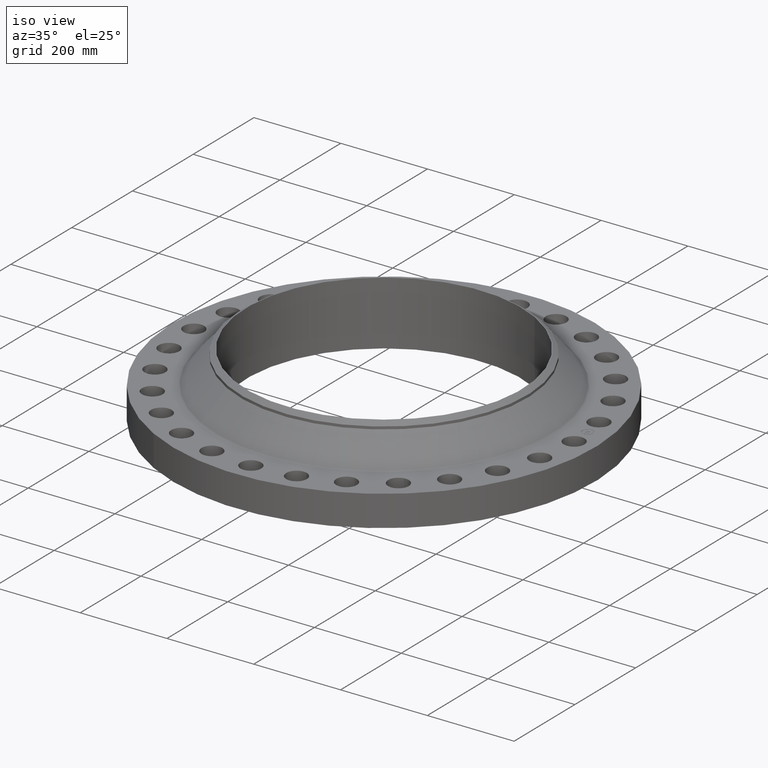
[diagram: clean part render]
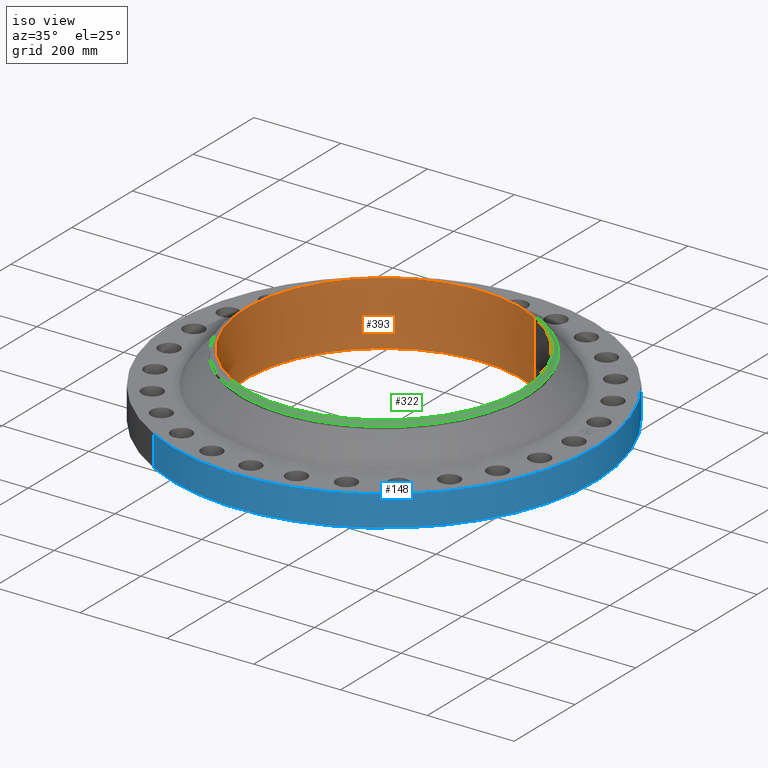
[diagram: same view with three faces highlighted in distinct colors, each labeled with its STEP entity id]
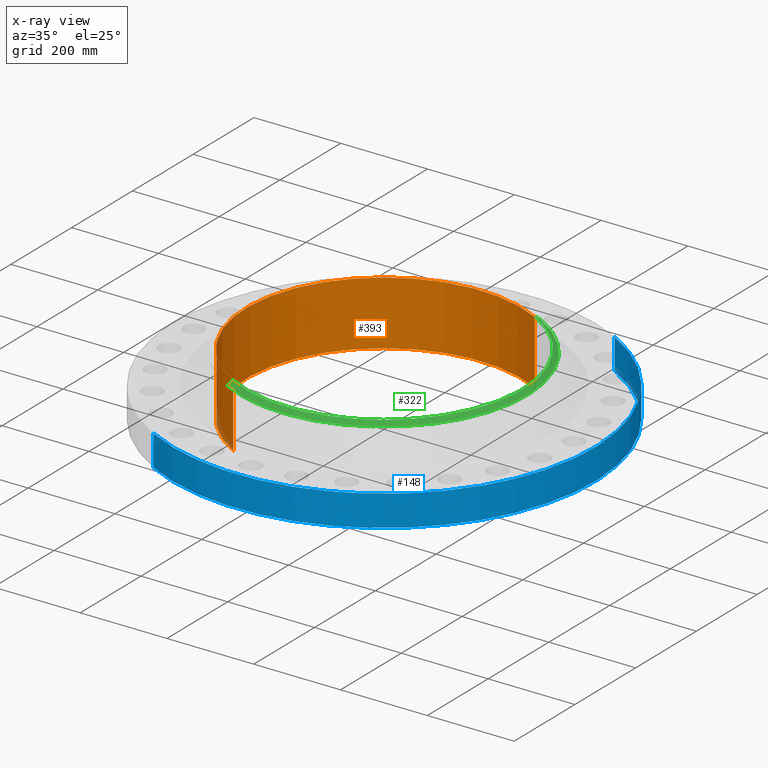
[diagram: x-ray of the same camera — body ghosted, the three highlighted faces saturated]
A machine part, iso view with three faces highlighted in distinct colors.
The next image is the same camera in x-ray (body ghosted, the three faces saturated) — at least one of them is partly hidden behind the body in this view.
Their STEP definitions:

[orange] entity #393 — the highlighted cylindrical surface (partial cylindrical patch) has radius 317.5 mm, axis along (0, 0, -1).
#346=AXIS2_PLACEMENT_3D('Circle Axis2P3D',#344,#345,$) ;
#366=AXIS2_PLACEMENT_3D('Cylinder Axis2P3D',#363,#364,#365) ;
#377=AXIS2_PLACEMENT_3D('Circle Axis2P3D',#375,#376,$) ;
#344=CARTESIAN_POINT('Axis2P3D Location',(3.35689481461E-015,5.59482469102E-016,5.81000000002)) ;
#348=CARTESIAN_POINT('Vertex',(-5.99281923258,-10.9697820237,5.81000000002)) ;
#350=CARTESIAN_POINT('Vertex',(5.99281923258,10.9697820237,5.81000000002)) ;
#363=CARTESIAN_POINT('Axis2P3D Location',(0.,0.,2.95500000001)) ;
#368=CARTESIAN_POINT('Line Origine',(-5.99281923258,-10.9697820237,2.90500000001)) ;
#372=CARTESIAN_POINT('Vertex',(-5.99281923258,-10.9697820237,-2.34982637023E-014)) ;
#375=CARTESIAN_POINT('Axis2P3D Location',(0.,0.,-2.34982637023E-014)) ;
#379=CARTESIAN_POINT('Vertex',(5.99281923258,10.9697820237,-2.34982637023E-014)) ;
#382=CARTESIAN_POINT('Line Origine',(5.99281923258,10.9697820237,2.90500000001)) ;
#345=DIRECTION('Axis2P3D Direction',(0.,-0.,-0.0393700787402)) ;
#364=DIRECTION('Axis2P3D Direction',(0.,0.,-0.0393700787402)) ;
#365=DIRECTION('Axis2P3D XDirection',(0.0188750212049,0.0345504945626,0.)) ;
#369=DIRECTION('Vector Direction',(0.,0.,-0.0393700787402)) ;
#376=DIRECTION('Axis2P3D Direction',(0.,0.,-0.0393700787402)) ;
#383=DIRECTION('Vector Direction',(0.,0.,-0.0393700787402)) ;
#370=VECTOR('Line Direction',#369,0.0393700787402) ;
#384=VECTOR('Line Direction',#383,0.0393700787402) ;
#388=ORIENTED_EDGE('',*,*,#374,.T.) ;
#389=ORIENTED_EDGE('',*,*,#381,.T.) ;
#390=ORIENTED_EDGE('',*,*,#386,.F.) ;
#391=ORIENTED_EDGE('',*,*,#352,.F.) ;
#393=ADVANCED_FACE('PartBody',(#392),#367,.F.) ;
#347=CIRCLE('generated circle',#346,12.5000000001) ;
#378=CIRCLE('generated circle',#377,12.5000000001) ;
#367=CYLINDRICAL_SURFACE('generated cylinder',#366,12.5000000001) ;
#352=EDGE_CURVE('',#349,#351,#347,.T.) ;
#374=EDGE_CURVE('',#349,#373,#371,.T.) ;
#381=EDGE_CURVE('',#373,#380,#378,.T.) ;
#386=EDGE_CURVE('',#351,#380,#385,.T.) ;
#387=EDGE_LOOP('',(#388,#389,#390,#391)) ;
#392=FACE_OUTER_BOUND('',#387,.T.) ;
#371=LINE('Line',#368,#370) ;
#385=LINE('Line',#382,#384) ;
#349=VERTEX_POINT('',#348) ;
#351=VERTEX_POINT('',#350) ;
#373=VERTEX_POINT('',#372) ;
#380=VERTEX_POINT('',#379) ;

[blue] entity #148 — the highlighted cylindrical surface (partial cylindrical patch) has radius 485.775 mm, axis along (0, 0, -1).
#95=AXIS2_PLACEMENT_3D('Cylinder Axis2P3D',#92,#93,#94) ;
#134=AXIS2_PLACEMENT_3D('Circle Axis2P3D',#132,#133,$) ;
#139=AXIS2_PLACEMENT_3D('Circle Axis2P3D',#137,#138,$) ;
#92=CARTESIAN_POINT('Axis2P3D Location',(0.,0.,2.95500000001)) ;
#101=CARTESIAN_POINT('Vertex',(-9.16901342584,-16.7837664962,2.23792987641E-015)) ;
#103=CARTESIAN_POINT('Vertex',(9.16901342584,16.7837664962,2.23792987641E-015)) ;
#106=CARTESIAN_POINT('Line Origine',(-9.16901342584,-16.7837664962,1.40500000001)) ;
#110=CARTESIAN_POINT('Vertex',(-9.16901342584,-16.7837664962,2.81000000001)) ;
#117=CARTESIAN_POINT('Vertex',(9.16901342584,16.7837664962,2.81000000001)) ;
#120=CARTESIAN_POINT('Line Origine',(9.16901342584,16.7837664962,1.40500000001)) ;
#132=CARTESIAN_POINT('Axis2P3D Location',(0.,0.,2.23792987641E-015)) ;
#137=CARTESIAN_POINT('Axis2P3D Location',(0.,0.,2.81000000001)) ;
#93=DIRECTION('Axis2P3D Direction',(0.,0.,-0.0393700787402)) ;
#94=DIRECTION('Axis2P3D XDirection',(0.0188750212049,0.0345504945626,0.)) ;
#107=DIRECTION('Vector Direction',(0.,0.,-0.0393700787402)) ;
#121=DIRECTION('Vector Direction',(0.,0.,-0.0393700787402)) ;
#133=DIRECTION('Axis2P3D Direction',(0.,0.,-0.0393700787402)) ;
#138=DIRECTION('Axis2P3D Direction',(0.,0.,-0.0393700787402)) ;
#108=VECTOR('Line Direction',#107,0.0393700787402) ;
#122=VECTOR('Line Direction',#121,0.0393700787402) ;
#143=ORIENTED_EDGE('',*,*,#136,.F.) ;
#144=ORIENTED_EDGE('',*,*,#124,.T.) ;
#145=ORIENTED_EDGE('',*,*,#141,.T.) ;
#146=ORIENTED_EDGE('',*,*,#112,.F.) ;
#148=ADVANCED_FACE('PartBody',(#147),#96,.T.) ;
#135=CIRCLE('generated circle',#134,19.1250000001) ;
#140=CIRCLE('generated circle',#139,19.1250000001) ;
#96=CYLINDRICAL_SURFACE('generated cylinder',#95,19.1250000001) ;
#112=EDGE_CURVE('',#102,#111,#109,.F.) ;
#124=EDGE_CURVE('',#104,#118,#123,.F.) ;
#136=EDGE_CURVE('',#104,#102,#135,.T.) ;
#141=EDGE_CURVE('',#118,#111,#140,.T.) ;
#142=EDGE_LOOP('',(#143,#144,#145,#146)) ;
#147=FACE_OUTER_BOUND('',#142,.T.) ;
#109=LINE('Line',#106,#108) ;
#123=LINE('Line',#120,#122) ;
#102=VERTEX_POINT('',#101) ;
#104=VERTEX_POINT('',#103) ;
#111=VERTEX_POINT('',#110) ;
#118=VERTEX_POINT('',#117) ;

[green] entity #322 — the highlighted conical surface has half-angle 52.5 deg.
#270=AXIS2_PLACEMENT_3D('Circle Axis2P3D',#268,#269,$) ;
#295=AXIS2_PLACEMENT_3D('Cone Axis2P3D',#292,#293,#294) ;
#306=AXIS2_PLACEMENT_3D('Circle Axis2P3D',#304,#305,$) ;
#258=CARTESIAN_POINT('Vertex',(-6.23253200188,-11.4085733046,5.47429444278)) ;
#265=CARTESIAN_POINT('Vertex',(6.23253200188,11.4085733046,5.47429444278)) ;
#268=CARTESIAN_POINT('Axis2P3D Location',(0.,0.,5.47429444278)) ;
#292=CARTESIAN_POINT('Axis2P3D Location',(0.,0.,5.81000000002)) ;
#297=CARTESIAN_POINT('Line Origine',(6.12765766531,11.2166021192,5.6421472214)) ;
#301=CARTESIAN_POINT('Vertex',(6.02278332874,11.0246309338,5.81000000002)) ;
#304=CARTESIAN_POINT('Axis2P3D Location',(0.,0.,5.81000000002)) ;
#308=CARTESIAN_POINT('Vertex',(-6.02278332874,-11.0246309338,5.81000000002)) ;
#311=CARTESIAN_POINT('Line Origine',(-6.12765766531,-11.2166021192,5.6421472214)) ;
#269=DIRECTION('Axis2P3D Direction',(0.,0.,-0.0393700787402)) ;
#293=DIRECTION('Axis2P3D Direction',(-0.,-0.,-0.0393700787402)) ;
#294=DIRECTION('Axis2P3D XDirection',(-0.0188750212049,-0.0345504945626,0.)) ;
#298=DIRECTION('Vector Direction',(0.014974561121,0.02741075027,-0.023966985394)) ;
#305=DIRECTION('Axis2P3D Direction',(0.,-0.,-0.0393700787402)) ;
#312=DIRECTION('Vector Direction',(-0.014974561121,-0.02741075027,-0.023966985394)) ;
#299=VECTOR('Line Direction',#298,0.0393700787402) ;
#313=VECTOR('Line Direction',#312,0.0393700787402) ;
#317=ORIENTED_EDGE('',*,*,#303,.F.) ;
#318=ORIENTED_EDGE('',*,*,#310,.T.) ;
#319=ORIENTED_EDGE('',*,*,#315,.T.) ;
#320=ORIENTED_EDGE('',*,*,#272,.F.) ;
#322=ADVANCED_FACE('PartBody',(#321),#296,.T.) ;
#271=CIRCLE('generated circle',#270,13.0000000001) ;
#307=CIRCLE('generated circle',#306,12.5625000001) ;
#296=CONICAL_SURFACE('Cone',#295,12.5625000001,0.916297857297) ;
#272=EDGE_CURVE('',#266,#259,#271,.T.) ;
#303=EDGE_CURVE('',#302,#266,#300,.T.) ;
#310=EDGE_CURVE('',#302,#309,#307,.T.) ;
#315=EDGE_CURVE('',#309,#259,#314,.T.) ;
#316=EDGE_LOOP('',(#317,#318,#319,#320)) ;
#321=FACE_OUTER_BOUND('',#316,.T.) ;
#300=LINE('Line',#297,#299) ;
#314=LINE('Line',#311,#313) ;
#259=VERTEX_POINT('',#258) ;
#266=VERTEX_POINT('',#265) ;
#302=VERTEX_POINT('',#301) ;
#309=VERTEX_POINT('',#308) ;